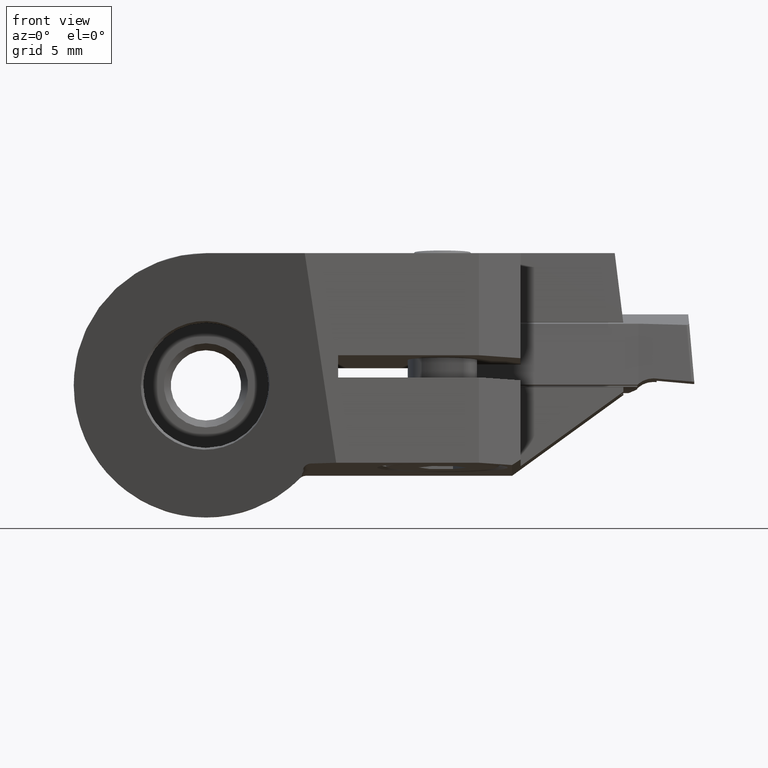
[diagram: clean part render]
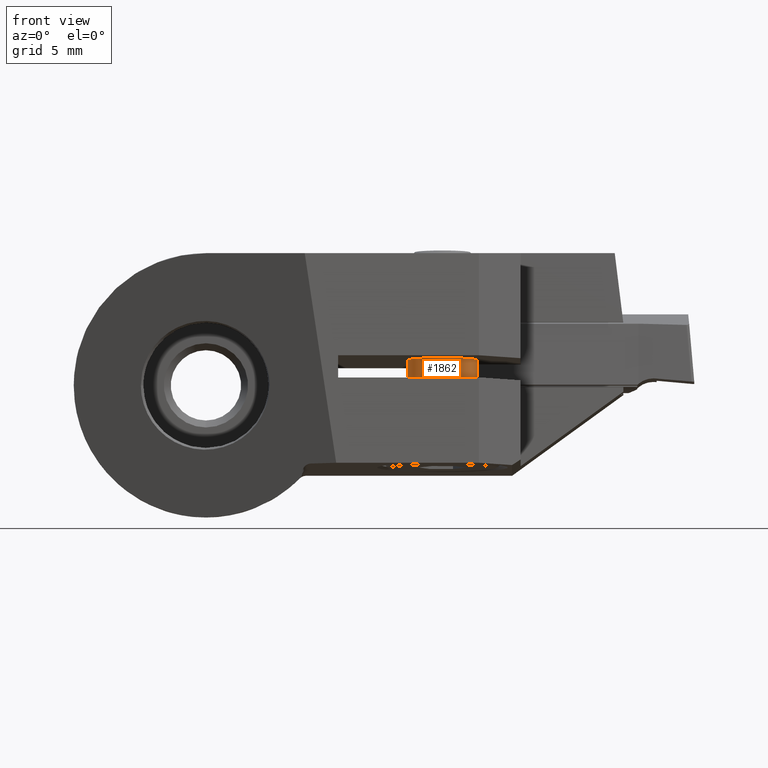
[diagram: same view with one face highlighted and labeled with its STEP entity id]
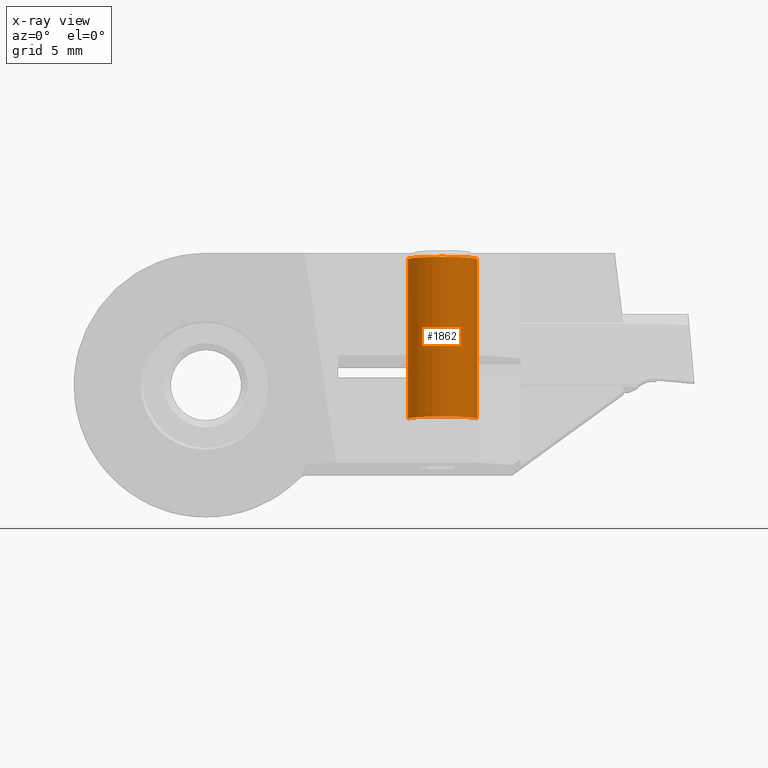
[diagram: x-ray of the same camera — body ghosted, the highlighted face saturated]
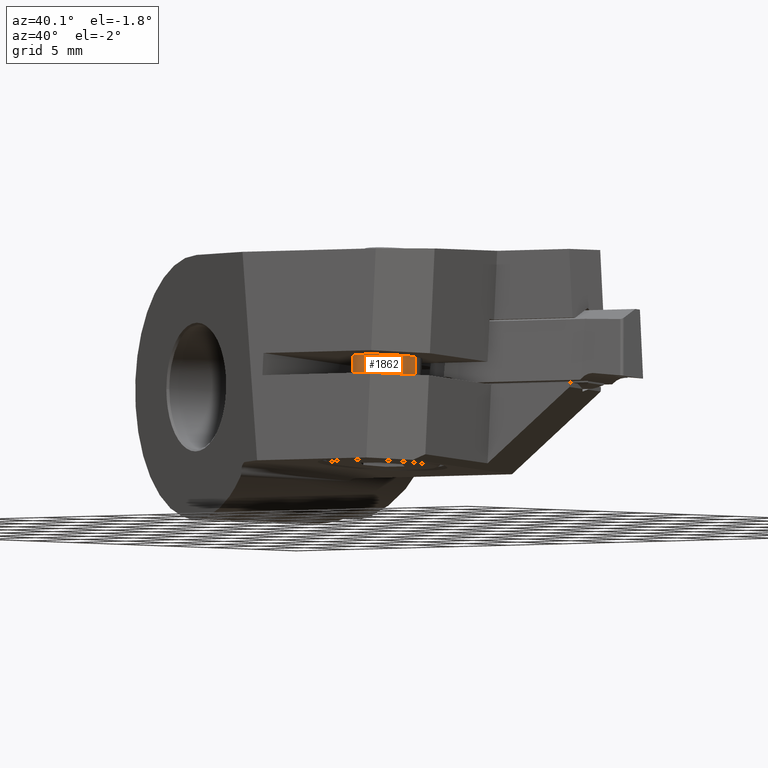
[diagram: same view with one face highlighted and labeled with its STEP entity id]
A machine part, front view. The second image highlights one B-rep face of the part: STEP entity #1862.
The next image is the same camera in x-ray: the body ghosted, the highlighted face saturated — about 0% of this face is hidden behind the body in this view.
A second angle (auxiliary view) of the same face is appended — the face is thin or edge-on in the first view.
In plain terms, the highlighted cylindrical surface (edge-blend (fillet) strip) has radius 2.5 mm, axis along (-0, -0.0698, -0.9976).
Its self-contained STEP definition (entity closure, byte-faithful):
#928=VERTEX_POINT('NONE',#2362);
#962=EDGE_CURVE('NONE',#928,#1744,#2397,.T.);
#1116=EDGE_CURVE('NONE',#2022,#928,#2566,.T.);
#1744=VERTEX_POINT('NONE',#3258);
#1824=EDGE_CURVE('NONE',#1952,#1744,#3349,.T.);
#1862=ADVANCED_FACE('NONE',(#3388),#3389,.T.);
#1952=VERTEX_POINT('NONE',#3492);
#1960=EDGE_CURVE('NONE',#2022,#1952,#3500,.T.);
#2022=VERTEX_POINT('NONE',#3570);
#2362=CARTESIAN_POINT('',(19.4939101256496,-14.791180392904,-2.42776071133865));
#2397=CIRCLE('',#4159,2.5);
#2566=LINE('',#4414,#4415);
#3258=CARTESIAN_POINT('',(14.5060898743504,-15.1391131453042,-2.40343088319259));
#3349=LINE('',#5969,#5970);
#3388=FACE_OUTER_BOUND('',#6060,.T.);
#3389=CYLINDRICAL_SURFACE('',#6061,2.5);
#3492=CARTESIAN_POINT('',(14.5060898743504,-14.3369136972468,9.0685556947954));
#3500=CIRCLE('',#6290,2.5);
#3570=CARTESIAN_POINT('',(19.4939101256496,-13.9889809448467,9.04422586664933));
#4159=AXIS2_PLACEMENT_3D('',#6784,#6785,#6786);
#4414=CARTESIAN_POINT('',(19.4939101256496,-16.6103768562413,-28.4434821889176));
#4415=VECTOR('',#6977,1000.0);
#5969=CARTESIAN_POINT('',(14.5060898743504,-16.9583096086414,-28.4191523607715));
#5970=VECTOR('',#7804,1000.0);
#6060=EDGE_LOOP('',(#7834,#7835,#7836,#7837));
#6061=AXIS2_PLACEMENT_3D('',#7838,#7839,#7840);
#6290=AXIS2_PLACEMENT_3D('',#7986,#7987,#7988);
#6784=CARTESIAN_POINT('',(17.0,-14.9651467691041,-2.41559579726562));
#6785=DIRECTION('',(-2.22044604925031E-018,-0.0697564737441182,-0.997564050259825));
#6786=DIRECTION('',(0.997564050259825,0.0695865504800257,-0.00486596562921386));
#6977=DIRECTION('',(-1.83331442923037E-018,-0.0697564737441182,-0.997564050259825));
#7804=DIRECTION('',(-1.83331442923037E-018,-0.0697564737441182,-0.997564050259825));
#7834=ORIENTED_EDGE('',*,*,#1960,.T.);
#7835=ORIENTED_EDGE('',*,*,#1824,.T.);
#7836=ORIENTED_EDGE('',*,*,#962,.F.);
#7837=ORIENTED_EDGE('',*,*,#1116,.F.);
#7838=CARTESIAN_POINT('',(17.0,-16.7843432324413,-28.4313172748446));
#7839=DIRECTION('',(-2.22044604925031E-018,-0.0697564737441182,-0.997564050259825));
#7840=DIRECTION('',(0.997564050259825,0.0695865504800257,-0.00486596562921386));
#7986=CARTESIAN_POINT('',(17.0,-14.1629473210467,9.05639078072236));
#7987=DIRECTION('',(-2.22044604925031E-018,-0.0697564737441182,-0.997564050259825));
#7988=DIRECTION('',(0.997564050259825,0.0695865504800257,-0.00486596562921386));